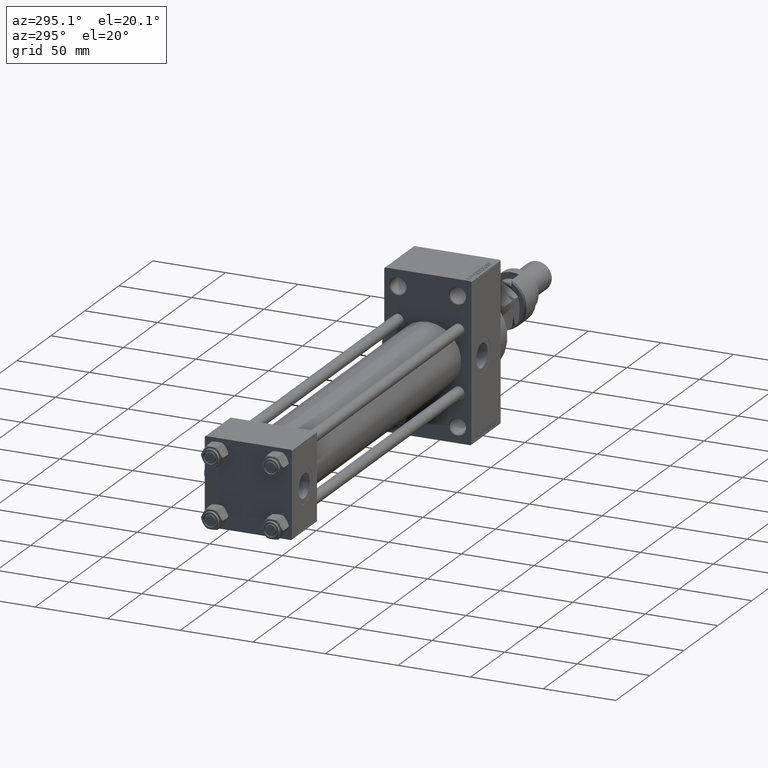
[diagram: clean part render]
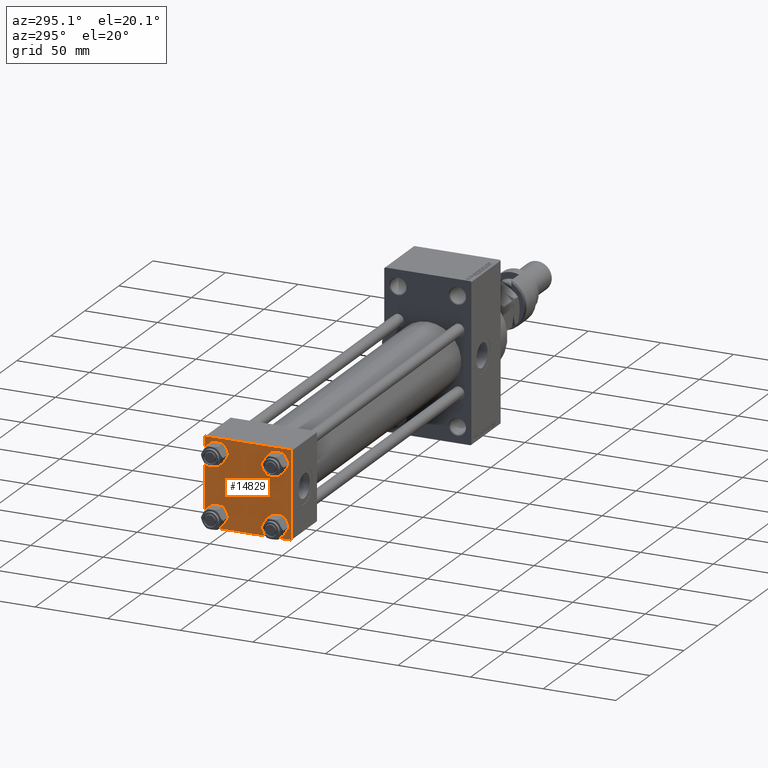
[diagram: same view with one face highlighted and labeled with its STEP entity id]
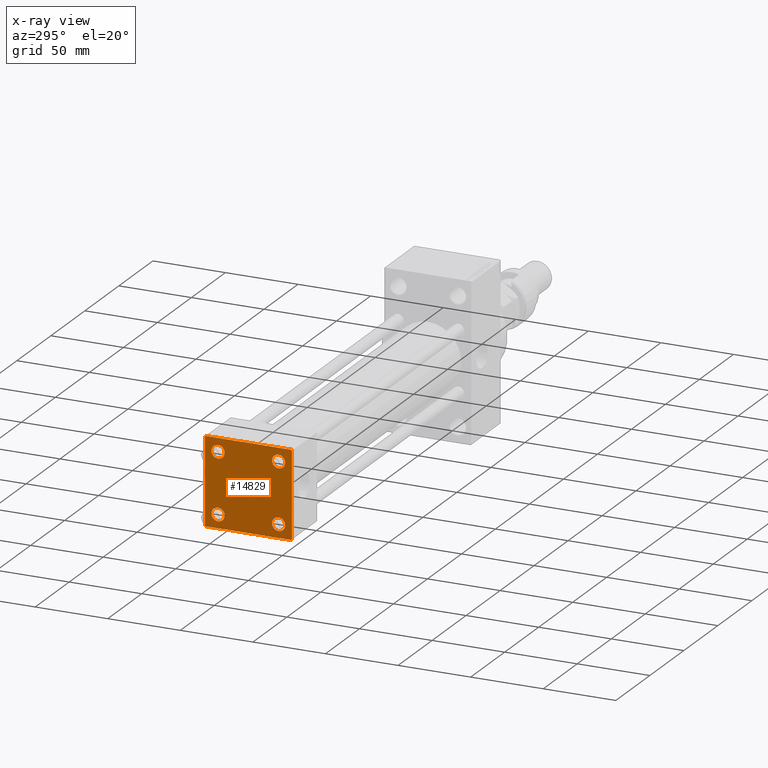
[diagram: x-ray of the same camera — body ghosted, the highlighted face saturated]
A machine part, auxiliary view. The second image highlights one B-rep face of the part: STEP entity #14829.
The next image is the same camera in x-ray: the body ghosted, the highlighted face saturated — about 0% of this face is hidden behind the body in this view.
In plain terms, the highlighted planar face has unit normal (-1, 0, 0).
Its self-contained STEP definition (entity closure, byte-faithful):
#192 = LINE ( 'NONE', #35792, #3223 ) ;
#705 = EDGE_CURVE ( 'NONE', #41505, #27631, #21755, .T. ) ;
#1168 = ORIENTED_EDGE ( 'NONE', *, *, #10363, .T. ) ;
#1551 = AXIS2_PLACEMENT_3D ( 'NONE', #29163, #21249, #33115 ) ;
#1552 = DIRECTION ( 'NONE',  ( 1.000000000000000000, -0.000000000000000000, 0.000000000000000000 ) ) ;
#1860 = FACE_OUTER_BOUND ( 'NONE', #51322, .T. ) ;
#2034 = ORIENTED_EDGE ( 'NONE', *, *, #705, .T. ) ;
#2407 = VERTEX_POINT ( 'NONE', #49812 ) ;
#2634 = FACE_BOUND ( 'NONE', #35422, .T. ) ;
#3178 = VERTEX_POINT ( 'NONE', #22510 ) ;
#3223 = VECTOR ( 'NONE', #44967, 999.9999999999998863 ) ;
#3421 = VERTEX_POINT ( 'NONE', #10065 ) ;
#5602 = ORIENTED_EDGE ( 'NONE', *, *, #10269, .F. ) ;
#5907 = AXIS2_PLACEMENT_3D ( 'NONE', #26362, #14737, #30058 ) ;
#5995 = DIRECTION ( 'NONE',  ( 0.000000000000000000, 0.000000000000000000, 1.000000000000000000 ) ) ;
#6840 = FACE_BOUND ( 'NONE', #44389, .T. ) ;
#6901 = VECTOR ( 'NONE', #20982, 1000.000000000000114 ) ;
#6970 = EDGE_CURVE ( 'NONE', #33308, #3421, #43469, .T. ) ;
#7138 = VECTOR ( 'NONE', #49986, 1000.000000000000114 ) ;
#7494 = EDGE_CURVE ( 'NONE', #42586, #30119, #17418, .T. ) ;
#8275 = VECTOR ( 'NONE', #19896, 1000.000000000000114 ) ;
#8824 = ORIENTED_EDGE ( 'NONE', *, *, #10540, .T. ) ;
#9837 = DIRECTION ( 'NONE',  ( 0.000000000000000000, 0.000000000000000000, 1.000000000000000000 ) ) ;
#10065 = CARTESIAN_POINT ( 'NONE',  ( 0.000000000000000000, 20.84999999999999787, -25.35000000000001918 ) ) ;
#10185 = AXIS2_PLACEMENT_3D ( 'NONE', #34224, #1552, #46083 ) ;
#10208 = DIRECTION ( 'NONE',  ( 1.000000000000000000, -0.000000000000000000, 0.000000000000000000 ) ) ;
#10269 = EDGE_CURVE ( 'NONE', #41505, #50205, #30796, .T. ) ;
#10363 = EDGE_CURVE ( 'NONE', #3178, #45445, #192, .T. ) ;
#10540 = EDGE_CURVE ( 'NONE', #30119, #42586, #24271, .T. ) ;
#10705 = EDGE_CURVE ( 'NONE', #36697, #50205, #36489, .T. ) ;
#10754 = CARTESIAN_POINT ( 'NONE',  ( 0.000000000000000000, -30.00000000000000000, 29.99999999999999289 ) ) ;
#11670 = VERTEX_POINT ( 'NONE', #48111 ) ;
#11895 = AXIS2_PLACEMENT_3D ( 'NONE', #15190, #39720, #35255 ) ;
#12004 = LINE ( 'NONE', #37749, #15248 ) ;
#12446 = VERTEX_POINT ( 'NONE', #51046 ) ;
#12451 = CARTESIAN_POINT ( 'NONE',  ( 0.000000000000000000, 20.84999999999999787, -16.34999999999998366 ) ) ;
#12959 = EDGE_CURVE ( 'NONE', #48263, #51140, #49611, .T. ) ;
#13393 = EDGE_CURVE ( 'NONE', #11670, #27631, #31530, .T. ) ;
#13794 = CARTESIAN_POINT ( 'NONE',  ( 0.000000000000000000, 20.84999999999999787, 25.35000000000001918 ) ) ;
#13810 = ORIENTED_EDGE ( 'NONE', *, *, #27282, .T. ) ;
#14044 = ORIENTED_EDGE ( 'NONE', *, *, #20295, .T. ) ;
#14131 = EDGE_LOOP ( 'NONE', ( #22897, #13810 ) ) ;
#14737 = DIRECTION ( 'NONE',  ( -1.000000000000000000, 0.000000000000000000, -0.000000000000000000 ) ) ;
#14829 = ADVANCED_FACE ( 'NONE', ( #37963, #6840, #46387, #2634, #1860 ), #50881, .T. ) ;
#15190 = CARTESIAN_POINT ( 'NONE',  ( 0.000000000000000000, 20.84999999999999787, -20.85000000000000142 ) ) ;
#15248 = VECTOR ( 'NONE', #32306, 1000.000000000000000 ) ;
#15341 = CARTESIAN_POINT ( 'NONE',  ( 0.000000000000000000, -20.84999999999999076, -25.35000000000002274 ) ) ;
#16154 = ORIENTED_EDGE ( 'NONE', *, *, #13393, .F. ) ;
#16241 = ORIENTED_EDGE ( 'NONE', *, *, #50856, .T. ) ;
#17418 = CIRCLE ( 'NONE', #33417, 4.500000000000017764 ) ;
#17602 = EDGE_CURVE ( 'NONE', #3421, #33308, #45553, .T. ) ;
#17741 = CARTESIAN_POINT ( 'NONE',  ( 0.000000000000000000, 20.84999999999999787, 20.85000000000000142 ) ) ;
#17848 = DIRECTION ( 'NONE',  ( 1.000000000000000000, -0.000000000000000000, 0.000000000000000000 ) ) ;
#18624 = EDGE_CURVE ( 'NONE', #48389, #12446, #45600, .T. ) ;
#19456 = CIRCLE ( 'NONE', #10185, 4.500000000000017764 ) ;
#19896 = DIRECTION ( 'NONE',  ( 0.000000000000000000, -0.7071067811865474617, 0.7071067811865474617 ) ) ;
#19915 = CARTESIAN_POINT ( 'NONE',  ( 0.000000000000000000, 29.99999999999999289, 30.00000000000000000 ) ) ;
#20295 = EDGE_CURVE ( 'NONE', #12446, #48389, #19456, .T. ) ;
#20962 = AXIS2_PLACEMENT_3D ( 'NONE', #21138, #45370, #37483 ) ;
#20982 = DIRECTION ( 'NONE',  ( 0.000000000000000000, 0.7071067811865474617, -0.7071067811865474617 ) ) ;
#21138 = CARTESIAN_POINT ( 'NONE',  ( 0.000000000000000000, -20.84999999999999076, 20.85000000000000497 ) ) ;
#21236 = CARTESIAN_POINT ( 'NONE',  ( 0.000000000000000000, 29.74999999999999645, 29.74999999999999645 ) ) ;
#21249 = DIRECTION ( 'NONE',  ( 1.000000000000000000, -0.000000000000000000, 0.000000000000000000 ) ) ;
#21755 = LINE ( 'NONE', #41284, #7138 ) ;
#22510 = CARTESIAN_POINT ( 'NONE',  ( 0.000000000000000000, 29.99999999999999289, -29.50000000000000000 ) ) ;
#22856 = CARTESIAN_POINT ( 'NONE',  ( 0.000000000000000000, -20.84999999999999076, -20.85000000000000497 ) ) ;
#22897 = ORIENTED_EDGE ( 'NONE', *, *, #12959, .T. ) ;
#23384 = AXIS2_PLACEMENT_3D ( 'NONE', #29297, #36942, #37981 ) ;
#24271 = CIRCLE ( 'NONE', #1551, 4.500000000000017764 ) ;
#26004 = ORIENTED_EDGE ( 'NONE', *, *, #36224, .T. ) ;
#26362 = CARTESIAN_POINT ( 'NONE',  ( 0.000000000000000000, 0.000000000000000000, 0.000000000000000000 ) ) ;
#27282 = EDGE_CURVE ( 'NONE', #51140, #48263, #51224, .T. ) ;
#27417 = EDGE_CURVE ( 'NONE', #2407, #3178, #38669, .T. ) ;
#27602 = DIRECTION ( 'NONE',  ( 0.000000000000000000, 0.000000000000000000, -1.000000000000000000 ) ) ;
#27631 = VERTEX_POINT ( 'NONE', #49438 ) ;
#27661 = AXIS2_PLACEMENT_3D ( 'NONE', #45257, #17848, #37623 ) ;
#27764 = VECTOR ( 'NONE', #39440, 1000.000000000000000 ) ;
#29163 = CARTESIAN_POINT ( 'NONE',  ( 0.000000000000000000, 20.84999999999999787, 20.85000000000000142 ) ) ;
#29297 = CARTESIAN_POINT ( 'NONE',  ( 0.000000000000000000, 20.84999999999999787, -20.85000000000000142 ) ) ;
#29885 = DIRECTION ( 'NONE',  ( 1.000000000000000000, -0.000000000000000000, 0.000000000000000000 ) ) ;
#30058 = DIRECTION ( 'NONE',  ( -0.000000000000000000, 0.000000000000000000, 1.000000000000000000 ) ) ;
#30119 = VERTEX_POINT ( 'NONE', #13794 ) ;
#30300 = CARTESIAN_POINT ( 'NONE',  ( 0.000000000000000000, 29.49999999999997868, -30.00000000000000000 ) ) ;
#30796 = LINE ( 'NONE', #10754, #43619 ) ;
#31530 = LINE ( 'NONE', #19915, #27764 ) ;
#31970 = ORIENTED_EDGE ( 'NONE', *, *, #6970, .T. ) ;
#32306 = DIRECTION ( 'NONE',  ( 0.000000000000000000, -1.000000000000000000, -1.156482317317871725E-16 ) ) ;
#33115 = DIRECTION ( 'NONE',  ( 0.000000000000000000, 0.000000000000000000, 1.000000000000000000 ) ) ;
#33308 = VERTEX_POINT ( 'NONE', #12451 ) ;
#33417 = AXIS2_PLACEMENT_3D ( 'NONE', #17741, #29885, #9837 ) ;
#33883 = LINE ( 'NONE', #21236, #6901 ) ;
#34224 = CARTESIAN_POINT ( 'NONE',  ( 0.000000000000000000, -20.84999999999999076, -20.85000000000000497 ) ) ;
#34690 = ORIENTED_EDGE ( 'NONE', *, *, #17602, .T. ) ;
#35088 = EDGE_LOOP ( 'NONE', ( #31970, #34690 ) ) ;
#35221 = VECTOR ( 'NONE', #27602, 1000.000000000000000 ) ;
#35255 = DIRECTION ( 'NONE',  ( 0.000000000000000000, 0.000000000000000000, 1.000000000000000000 ) ) ;
#35422 = EDGE_LOOP ( 'NONE', ( #8824, #38833 ) ) ;
#35792 = CARTESIAN_POINT ( 'NONE',  ( 0.000000000000000000, 29.74999999999957723, -29.75000000000040501 ) ) ;
#36224 = EDGE_CURVE ( 'NONE', #45445, #36697, #12004, .T. ) ;
#36409 = CARTESIAN_POINT ( 'NONE',  ( 0.000000000000000000, -30.00000000000000000, -29.50000000000001776 ) ) ;
#36489 = LINE ( 'NONE', #39931, #8275 ) ;
#36697 = VERTEX_POINT ( 'NONE', #51126 ) ;
#36942 = DIRECTION ( 'NONE',  ( 1.000000000000000000, -0.000000000000000000, 0.000000000000000000 ) ) ;
#37468 = CARTESIAN_POINT ( 'NONE',  ( 0.000000000000000000, -30.00000000000000000, 29.49999999999999289 ) ) ;
#37483 = DIRECTION ( 'NONE',  ( 0.000000000000000000, 0.000000000000000000, 1.000000000000000000 ) ) ;
#37623 = DIRECTION ( 'NONE',  ( 0.000000000000000000, 0.000000000000000000, 1.000000000000000000 ) ) ;
#37749 = CARTESIAN_POINT ( 'NONE',  ( 0.000000000000000000, 29.99999999999999289, -30.00000000000000000 ) ) ;
#37926 = CARTESIAN_POINT ( 'NONE',  ( 0.000000000000000000, 20.84999999999999787, 16.34999999999998366 ) ) ;
#37963 = FACE_BOUND ( 'NONE', #14131, .T. ) ;
#37981 = DIRECTION ( 'NONE',  ( 0.000000000000000000, 0.000000000000000000, 1.000000000000000000 ) ) ;
#38669 = LINE ( 'NONE', #43400, #35221 ) ;
#38833 = ORIENTED_EDGE ( 'NONE', *, *, #7494, .T. ) ;
#39440 = DIRECTION ( 'NONE',  ( 0.000000000000000000, -1.000000000000000000, -1.156482317317871725E-16 ) ) ;
#39720 = DIRECTION ( 'NONE',  ( 1.000000000000000000, -0.000000000000000000, 0.000000000000000000 ) ) ;
#39931 = CARTESIAN_POINT ( 'NONE',  ( 0.000000000000000000, -29.75000000000001066, -29.75000000000001066 ) ) ;
#41284 = CARTESIAN_POINT ( 'NONE',  ( -0.000000000000000000, -29.74999999999999645, 29.74999999999999645 ) ) ;
#41505 = VERTEX_POINT ( 'NONE', #37468 ) ;
#42586 = VERTEX_POINT ( 'NONE', #37926 ) ;
#43400 = CARTESIAN_POINT ( 'NONE',  ( 0.000000000000000000, 29.99999999999999289, 30.00000000000000000 ) ) ;
#43469 = CIRCLE ( 'NONE', #23384, 4.500000000000017764 ) ;
#43619 = VECTOR ( 'NONE', #47127, 1000.000000000000000 ) ;
#43908 = AXIS2_PLACEMENT_3D ( 'NONE', #22856, #10208, #5995 ) ;
#44123 = CARTESIAN_POINT ( 'NONE',  ( 0.000000000000000000, -20.84999999999999076, 25.35000000000002274 ) ) ;
#44389 = EDGE_LOOP ( 'NONE', ( #14044, #50262 ) ) ;
#44967 = DIRECTION ( 'NONE',  ( -0.000000000000000000, -0.7071067811865574537, -0.7071067811865376918 ) ) ;
#45257 = CARTESIAN_POINT ( 'NONE',  ( 0.000000000000000000, -20.84999999999999076, 20.85000000000000497 ) ) ;
#45370 = DIRECTION ( 'NONE',  ( 1.000000000000000000, -0.000000000000000000, 0.000000000000000000 ) ) ;
#45445 = VERTEX_POINT ( 'NONE', #30300 ) ;
#45553 = CIRCLE ( 'NONE', #11895, 4.500000000000017764 ) ;
#45600 = CIRCLE ( 'NONE', #43908, 4.500000000000017764 ) ;
#46083 = DIRECTION ( 'NONE',  ( 0.000000000000000000, 0.000000000000000000, 1.000000000000000000 ) ) ;
#46387 = FACE_BOUND ( 'NONE', #35088, .T. ) ;
#46416 = ORIENTED_EDGE ( 'NONE', *, *, #10705, .T. ) ;
#47127 = DIRECTION ( 'NONE',  ( 0.000000000000000000, 0.000000000000000000, -1.000000000000000000 ) ) ;
#48111 = CARTESIAN_POINT ( 'NONE',  ( 0.000000000000000000, 29.49999999999999289, 30.00000000000000000 ) ) ;
#48263 = VERTEX_POINT ( 'NONE', #44123 ) ;
#48389 = VERTEX_POINT ( 'NONE', #15341 ) ;
#48862 = CARTESIAN_POINT ( 'NONE',  ( 0.000000000000000000, -20.84999999999999076, 16.34999999999998721 ) ) ;
#49438 = CARTESIAN_POINT ( 'NONE',  ( 0.000000000000000000, -29.49999999999998579, 29.99999999999999289 ) ) ;
#49489 = ORIENTED_EDGE ( 'NONE', *, *, #27417, .T. ) ;
#49611 = CIRCLE ( 'NONE', #20962, 4.500000000000017764 ) ;
#49812 = CARTESIAN_POINT ( 'NONE',  ( 0.000000000000000000, 29.99999999999999289, 29.50000000000000000 ) ) ;
#49986 = DIRECTION ( 'NONE',  ( -0.000000000000000000, 0.7071067811865474617, 0.7071067811865474617 ) ) ;
#50205 = VERTEX_POINT ( 'NONE', #36409 ) ;
#50262 = ORIENTED_EDGE ( 'NONE', *, *, #18624, .T. ) ;
#50856 = EDGE_CURVE ( 'NONE', #11670, #2407, #33883, .T. ) ;
#50881 = PLANE ( 'NONE',  #5907 ) ;
#51046 = CARTESIAN_POINT ( 'NONE',  ( 0.000000000000000000, -20.84999999999999076, -16.34999999999998721 ) ) ;
#51126 = CARTESIAN_POINT ( 'NONE',  ( 0.000000000000000000, -29.50000000000000000, -30.00000000000000711 ) ) ;
#51140 = VERTEX_POINT ( 'NONE', #48862 ) ;
#51224 = CIRCLE ( 'NONE', #27661, 4.500000000000017764 ) ;
#51322 = EDGE_LOOP ( 'NONE', ( #49489, #1168, #26004, #46416, #5602, #2034, #16154, #16241 ) ) ;